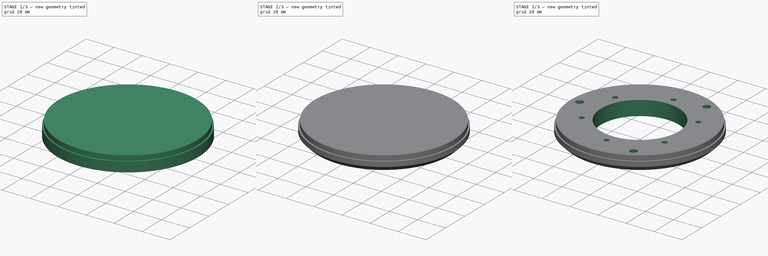
[diagram: build sequence overview — one tinted view per stage of 3, left to right]
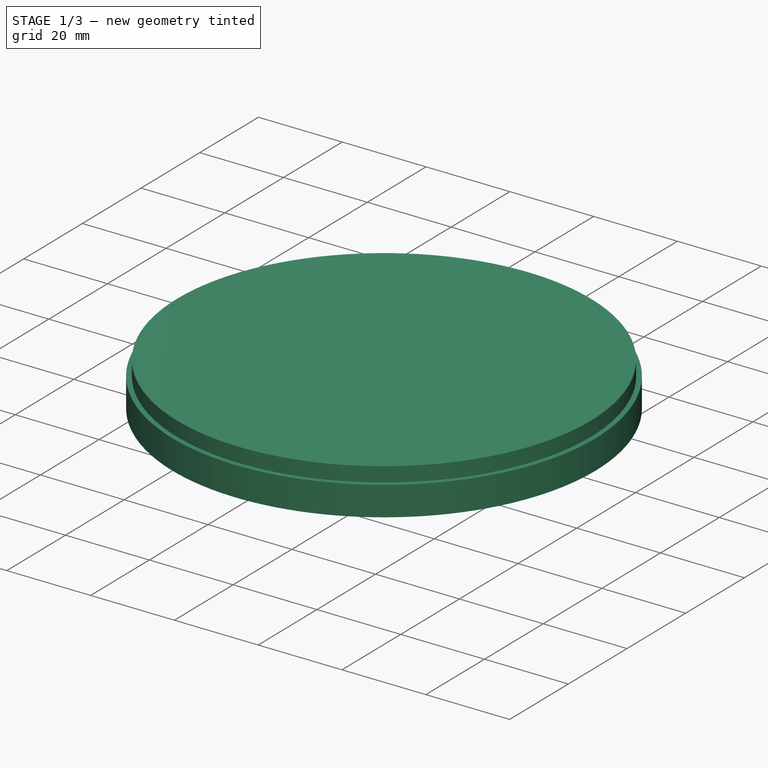
[diagram: stage 1 of 3 — iso view after this stage's code; geometry added in this stage tinted green]
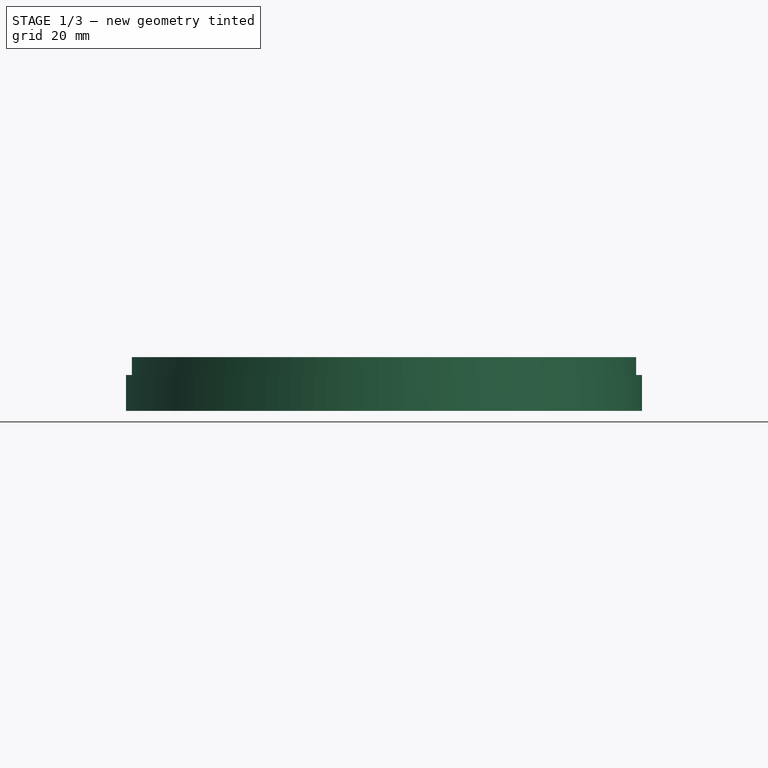
[diagram: stage 1 of 3 — front view after this stage's code; geometry added in this stage tinted green]
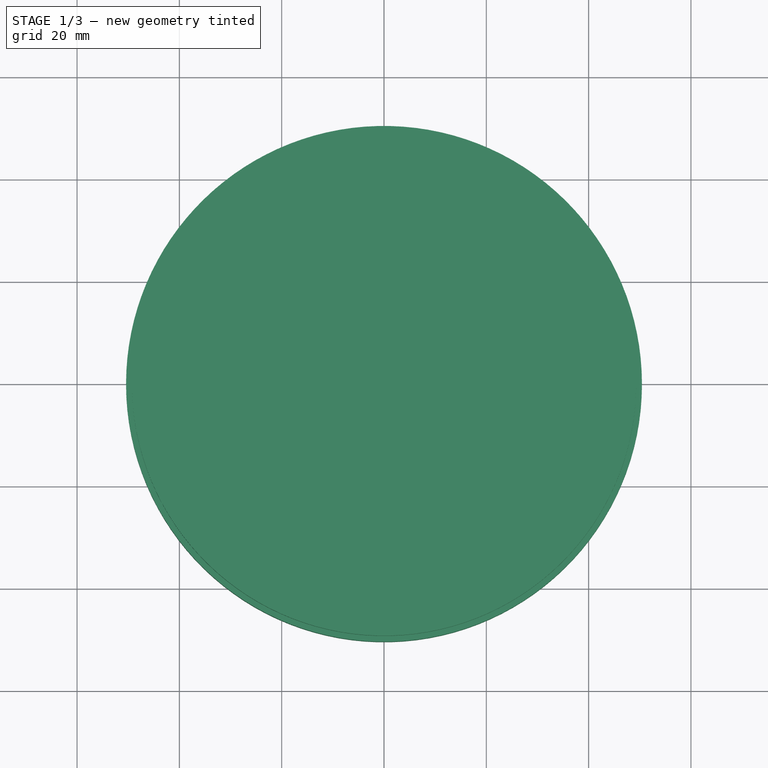
[diagram: stage 1 of 3 — top view after this stage's code; geometry added in this stage tinted green]
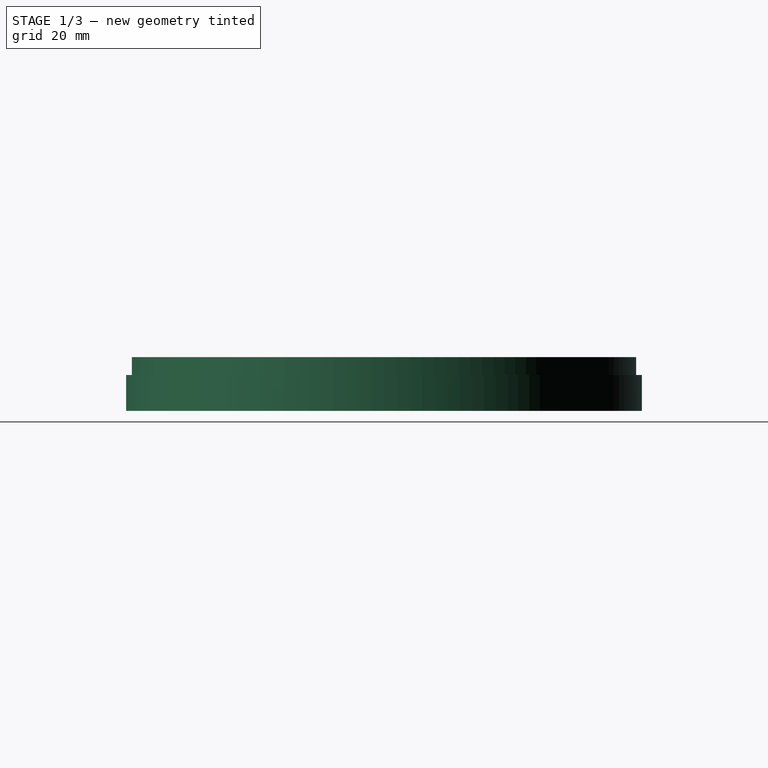
[diagram: stage 1 of 3 — right view after this stage's code; geometry added in this stage tinted green]
FCSTD DOCUMENT  (FreeCAD 1.0R39109 (Git))
Label: ThrustPlate-4in-AeroPack
License: Creative Commons Attribution-ShareAlike 4.0
LicenseURL: https://creativecommons.org/licenses/by-sa/4.0/
objects: Sketcher::SketchObject×3, PartDesign::Pad×2, PartDesign::Chamfer×2, PartDesign::Pocket×1, PartDesign::Body×1
note: 22 computed .brp shape members not serialized (recipe doc carries the construction recipe); baked Part::Feature solids carry a one-line shape summary decoded from their .brp

FEATURE [Sketcher::SketchObject] Sketch
  ArcFitTolerance = 1e-06
  AttachmentSupport = -> [XY_Plane]
  FullyConstrained = true
  MakeInternals = false
  MapMode = 5
  sketch-geometry (1):
    g0: Circle CenterX=0 CenterY=0 CenterZ=0 NormalX=0 NormalY=0 NormalZ=1 AngleXU=0 Radius=50.425
  constraints (2):
    c: Coincident(g0,g-1)
    c: Diameter(g0) = 100.85
FEATURE [PartDesign::Pad] Pad
  Direction = (0,0,1)
  Length = 7
  Length2 = 10
  Profile = -> Sketch
  ReferenceAxis = -> Sketch [N_Axis]
  Refine = true
  Suppressed = false
  Type = 0
FEATURE [Sketcher::SketchObject] Sketch001
  ArcFitTolerance = 1e-06
  AttachmentSupport = -> [Pad]
  FullyConstrained = true
  MakeInternals = false
  MapMode = 5
  Placement = pos=(0,0,7) rot=(0,0,1;0rad)
  sketch-geometry (1):
    g0: Circle CenterX=0 CenterY=0 CenterZ=0 NormalX=0 NormalY=0 NormalZ=1 AngleXU=0 Radius=49.3
  constraints (2):
    c: Coincident(g0,g-1)
    c: Diameter(g0) = 98.6
FEATURE [PartDesign::Pad] Pad001
  BaseFeature = -> Pad
  Direction = (0,0,1)
  Length = 3.5
  Length2 = 10
  Profile = -> Sketch001
  ReferenceAxis = -> Sketch001 [N_Axis]
  Refine = true
  Suppressed = false
  Type = 0
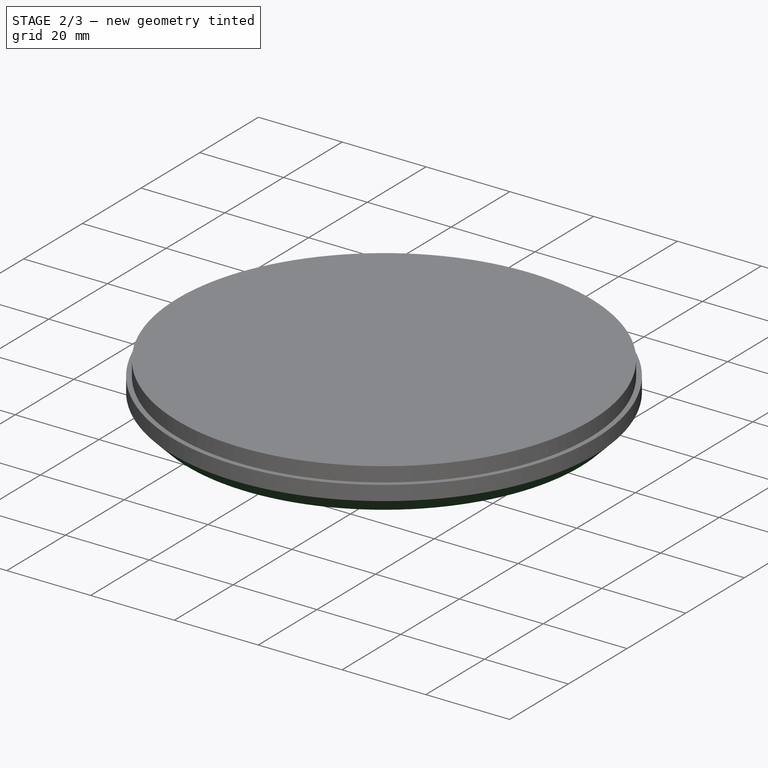
[diagram: stage 2 of 3 — iso view after this stage's code; geometry added in this stage tinted green]
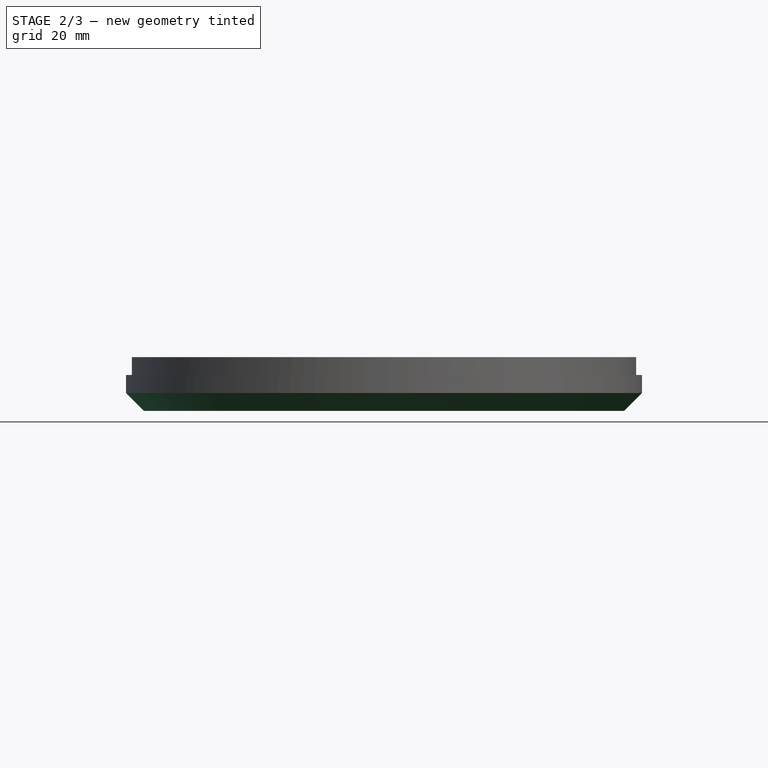
[diagram: stage 2 of 3 — front view after this stage's code; geometry added in this stage tinted green]
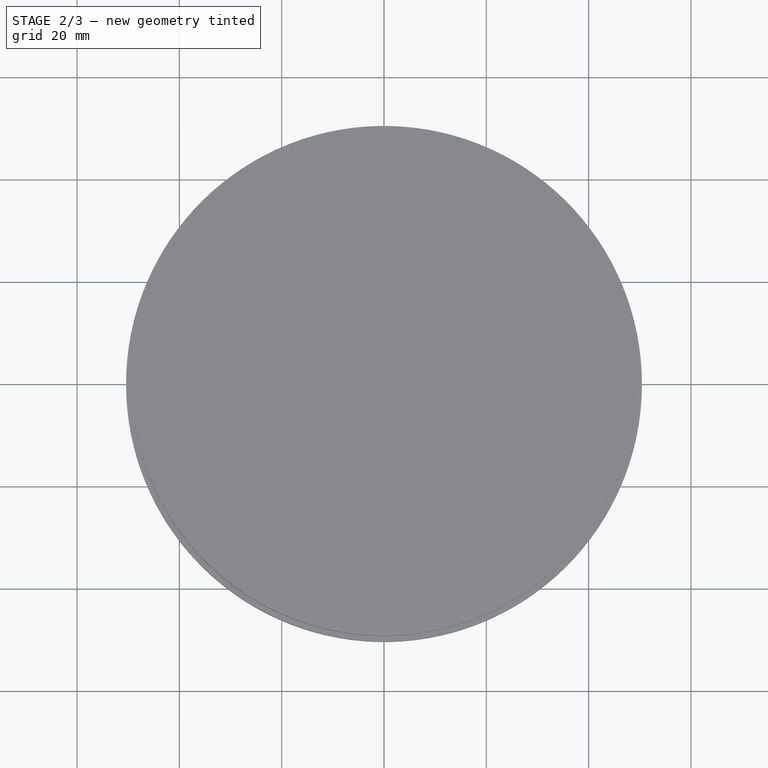
[diagram: stage 2 of 3 — top view after this stage's code; geometry added in this stage tinted green]
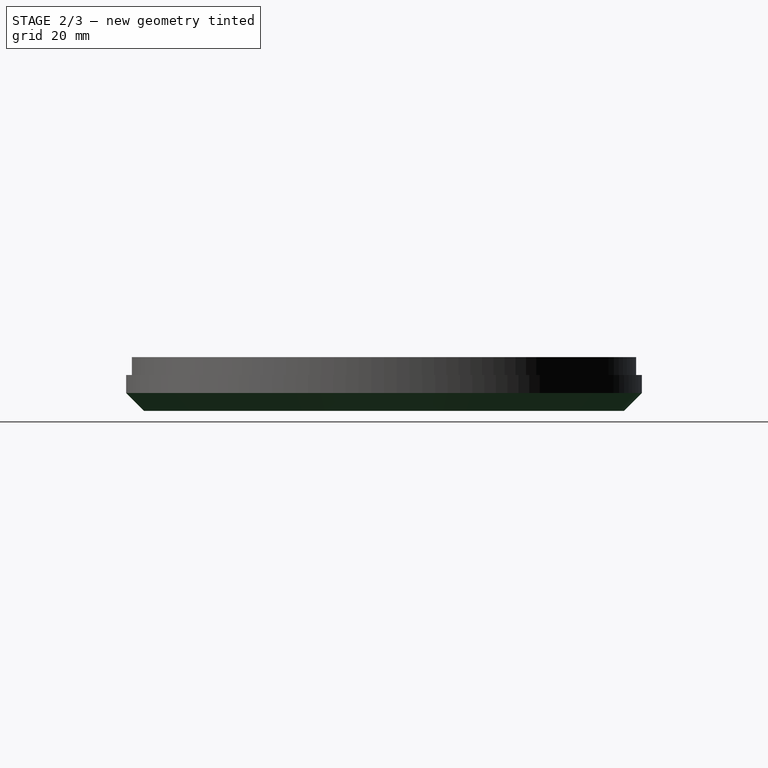
[diagram: stage 2 of 3 — right view after this stage's code; geometry added in this stage tinted green]
FEATURE [PartDesign::Chamfer] Chamfer
  Angle = 45
  Base = -> Pad001 [Edge2]
  BaseFeature = -> Pad001
  ChamferType = 0
  FlipDirection = false
  Refine = true
  Size = 3.5
  Size2 = 1
  SupportTransform = false
  Suppressed = false
  UseAllEdges = false
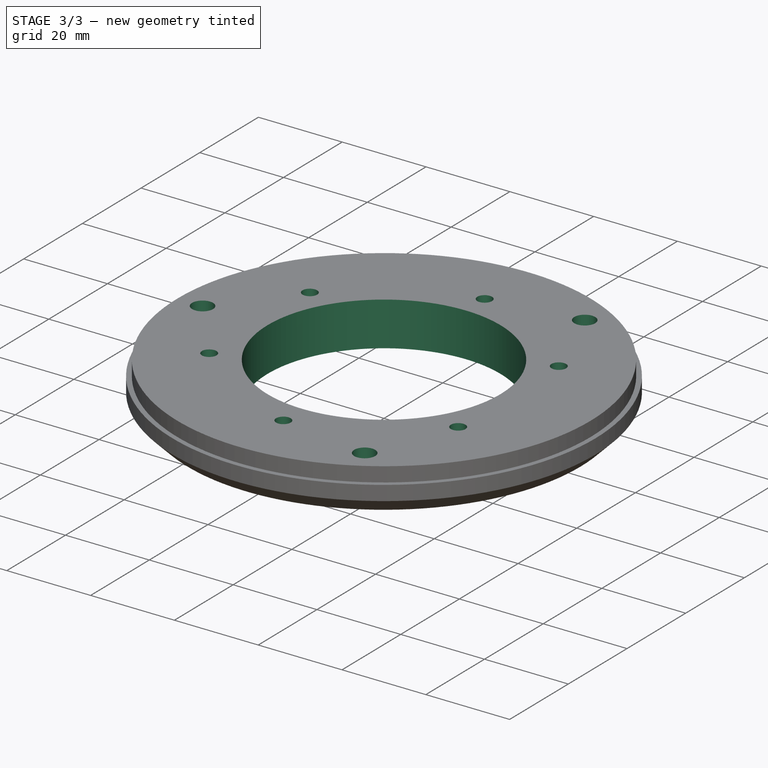
[diagram: stage 3 of 3 — iso view after this stage's code; geometry added in this stage tinted green]
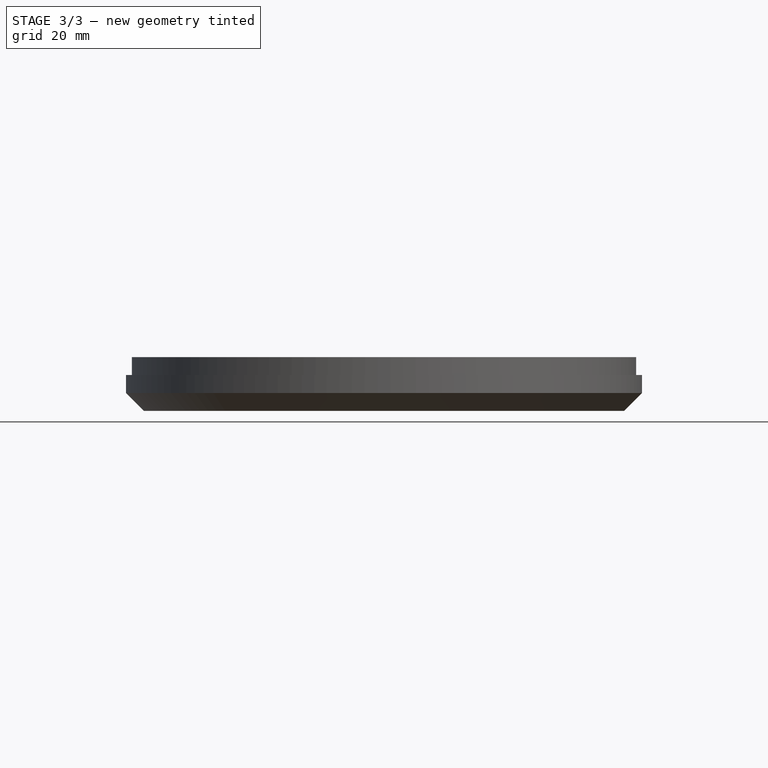
[diagram: stage 3 of 3 — front view after this stage's code; geometry added in this stage tinted green]
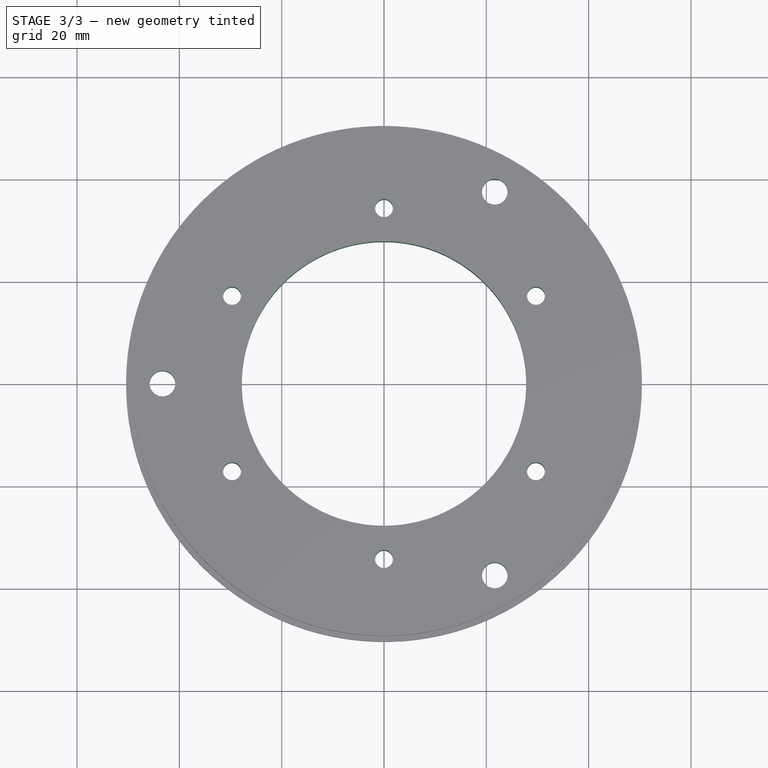
[diagram: stage 3 of 3 — top view after this stage's code; geometry added in this stage tinted green]
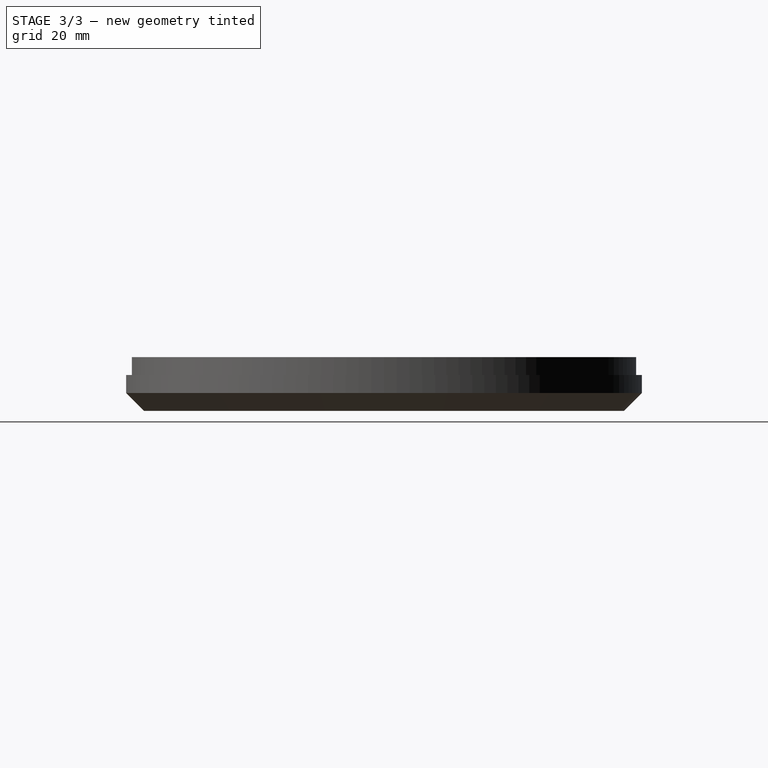
[diagram: stage 3 of 3 — right view after this stage's code; geometry added in this stage tinted green]
FEATURE [Sketcher::SketchObject] Sketch002
  ArcFitTolerance = 1e-06
  AttachmentSupport = -> [Chamfer]
  FullyConstrained = true
  MakeInternals = false
  MapMode = 5
  Placement = pos=(0,0,10.5) rot=(0,0,1;0rad)
  sketch-geometry (23):
    g0: Circle CenterX=0 CenterY=0 CenterZ=0 NormalX=0 NormalY=0 NormalZ=1 AngleXU=0 Radius=27.8
    g1: Circle CenterX=-43.3 CenterY=0 CenterZ=0 NormalX=0 NormalY=0 NormalZ=1 AngleXU=0 Radius=2.5
    g2: Circle [constr] CenterX=0 CenterY=0 CenterZ=0 NormalX=0 NormalY=0 NormalZ=1 AngleXU=0 Radius=43.3
    g3: Circle CenterX=21.65 CenterY=37.4989 CenterZ=0 NormalX=0 NormalY=0 NormalZ=1 AngleXU=0 Radius=2.5
    g4: Circle CenterX=21.65 CenterY=-37.4989 CenterZ=0 NormalX=0 NormalY=0 NormalZ=1 AngleXU=0 Radius=2.5
    g5: LineSegment [constr] StartX=-43.3 StartY=0 StartZ=0 EndX=21.65 EndY=37.4989 EndZ=0
    g6: LineSegment [constr] StartX=21.65 StartY=-37.4989 StartZ=0 EndX=21.65 EndY=37.4989 EndZ=0
    g7: LineSegment [constr] StartX=-43.3 StartY=0 StartZ=0 EndX=21.65 EndY=-37.4989 EndZ=0
    g8: Circle [constr] CenterX=0 CenterY=0 CenterZ=0 NormalX=0 NormalY=0 NormalZ=1 AngleXU=0 Radius=34.3
    g9: Circle CenterX=-29.7047 CenterY=17.15 CenterZ=0 NormalX=0 NormalY=0 NormalZ=1 AngleXU=0 Radius=1.75
    g10: Circle CenterX=1.1e-15 CenterY=34.3 CenterZ=0 NormalX=0 NormalY=0 NormalZ=1 AngleXU=0 Radius=1.75
    g11: Circle CenterX=29.7047 CenterY=17.15 CenterZ=0 NormalX=0 NormalY=0 NormalZ=1 AngleXU=0 Radius=1.75
    g12: Circle CenterX=29.7047 CenterY=-17.15 CenterZ=0 NormalX=0 NormalY=0 NormalZ=1 AngleXU=0 Radius=1.75
    g13: Circle CenterX=-3.6e-15 CenterY=-34.3 CenterZ=0 NormalX=0 NormalY=0 NormalZ=1 AngleXU=0 Radius=1.75
    g14: Circle CenterX=-29.7047 CenterY=-17.15 CenterZ=0 NormalX=0 NormalY=0 NormalZ=1 AngleXU=0 Radius=1.75
    g15: LineSegment [constr] StartX=-29.7047 StartY=17.15 StartZ=0 EndX=0 EndY=34.3 EndZ=0
    g16: LineSegment [constr] StartX=1.1e-15 StartY=34.3 StartZ=0 EndX=29.7047 EndY=17.15 EndZ=0
    g17: LineSegment [constr] StartX=29.7047 StartY=17.15 StartZ=0 EndX=29.7047 EndY=-17.15 EndZ=0
    g18: LineSegment [constr] StartX=-3.6e-15 StartY=-34.3 StartZ=0 EndX=29.7047 EndY=-17.15 EndZ=0
    g19: LineSegment [constr] StartX=-29.7047 StartY=-17.15 StartZ=0 EndX=-3.6e-15 EndY=-34.3 EndZ=0
    g20: LineSegment [constr] StartX=-29.7047 StartY=17.15 StartZ=0 EndX=-29.7047 EndY=-17.15 EndZ=0
    g21: LineSegment [constr] StartX=-43.3 StartY=0 StartZ=0 EndX=-29.7047 EndY=-17.15 EndZ=0
    g22: LineSegment [constr] StartX=-43.3 StartY=0 StartZ=0 EndX=-29.7047 EndY=17.15 EndZ=0
  constraints (55):
    c: Coincident(g0,g-1)
    c: Diameter(g0) = 55.6
    c: PointOnObject(g1,g-1)
    c: Diameter(g1) = 5
    c: Coincident(g2,g0)
    c: Diameter(g2) = 86.6
    c: PointOnObject(g1,g2)
    c: Diameter(g3) = 5
    c: Diameter(g4) = 5
    c: PointOnObject(g3,g2)
    c: PointOnObject(g4,g2)
    c: Coincident(g5,g1)
    c: Coincident(g5,g3)
    c: Coincident(g6,g4)
    c: Coincident(g6,g3)
    c: Coincident(g7,g1)
    c: Coincident(g7,g4)
    c: Equal(g7,g5)
    c: Equal(g5,g6)
    c: Coincident(g8,g0)
    c: Diameter(g8) = 68.6
    c: PointOnObject(g9,g8)
    c: Diameter(g9) = 3.5
    c: Diameter(g10) = 3.5
    c: Diameter(g11) = 3.5
    c: Diameter(g12) = 3.5
    c: Diameter(g13) = 3.5
    c: Diameter(g14) = 3.5
    c: Coincident(g15,g9)
    c: Coincident(g15,g10)
    c: Coincident(g16,g10)
    c: Coincident(g16,g11)
    c: Coincident(g17,g11)
    c: Coincident(g17,g12)
    c: Coincident(g18,g13)
    c: Coincident(g18,g12)
    c: Coincident(g19,g14)
    c: Coincident(g19,g13)
    c: Coincident(g20,g9)
    c: Coincident(g20,g14)
    c: PointOnObject(g10,g8)
    c: PointOnObject(g11,g8)
    c: PointOnObject(g12,g8)
    c: PointOnObject(g13,g8)
    c: PointOnObject(g14,g8)
    c: Equal(g15,g16)
    c: Equal(g16,g17)
    c: Equal(g17,g18)
    c: Equal(g18,g19)
    c: Equal(g19,g20)
    c: Coincident(g21,g1)
    c: Coincident(g21,g14)
    c: Coincident(g22,g1)
    c: Coincident(g22,g9)
    c: Equal(g22,g21)
FEATURE [PartDesign::Pocket] Pocket
  BaseFeature = -> Chamfer
  Direction = (0,0,-1)
  Length = 5
  Length2 = 5
  Profile = -> Sketch002
  ReferenceAxis = -> Sketch002 [N_Axis]
  Refine = true
  Suppressed = false
  Type = 1
FEATURE [PartDesign::Chamfer] Chamfer001
  Angle = 70
  Base = -> Pocket [Edge10,Edge8,Edge16]
  BaseFeature = -> Pocket
  ChamferType = 2
  FlipDirection = false
  Refine = true
  Size = 1
  Size2 = 1
  SupportTransform = false
  Suppressed = false
  UseAllEdges = false
FEATURE [PartDesign::Body] Body
  AllowCompound = false
  Group = -> [Sketch,Pad,Sketch001,Pad001,Chamfer,Sketch002,Pocket,Chamfer001]
  Origin = -> Origin
  Tip = -> Chamfer001
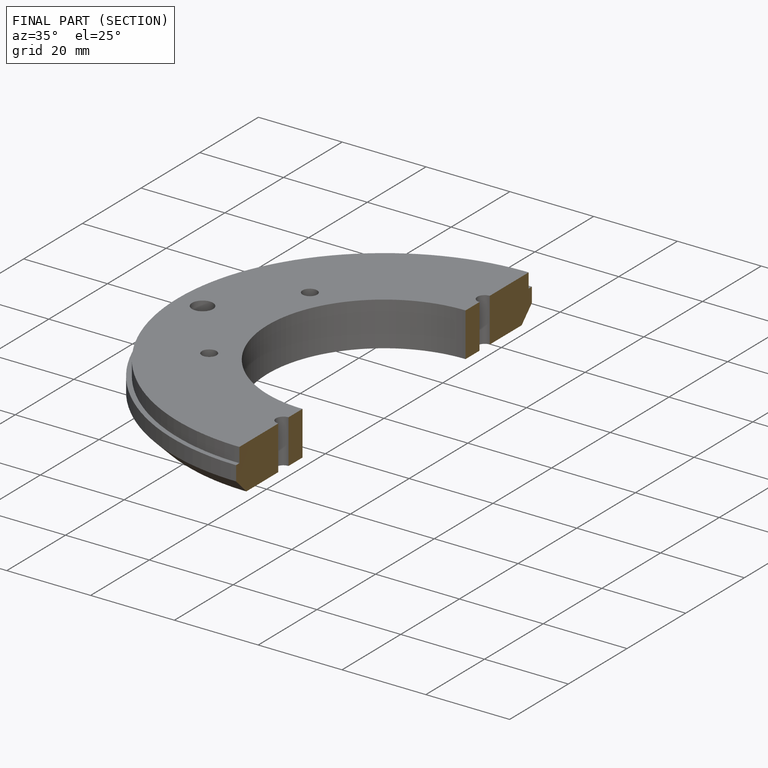
[diagram: finished part — half-section view (interior)]
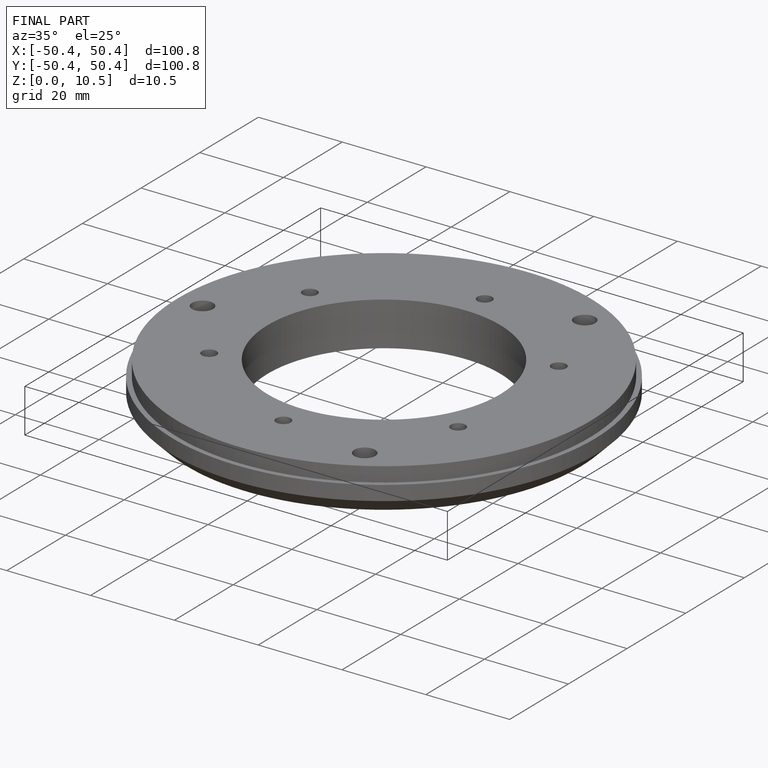
[diagram: finished part — iso view with bounding-box wireframe]
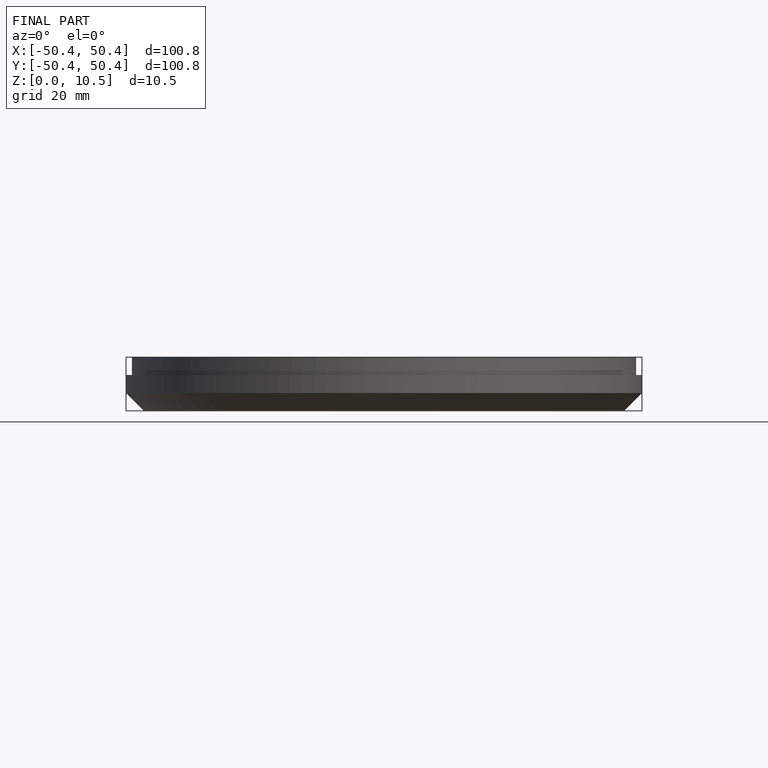
[diagram: finished part — front view with bounding-box wireframe]
